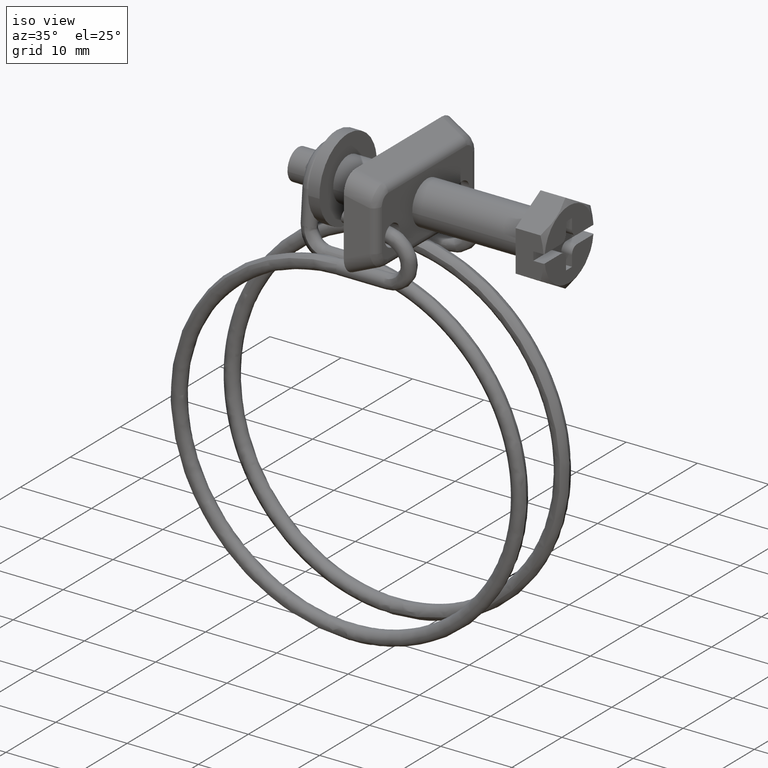
[diagram: clean part render]
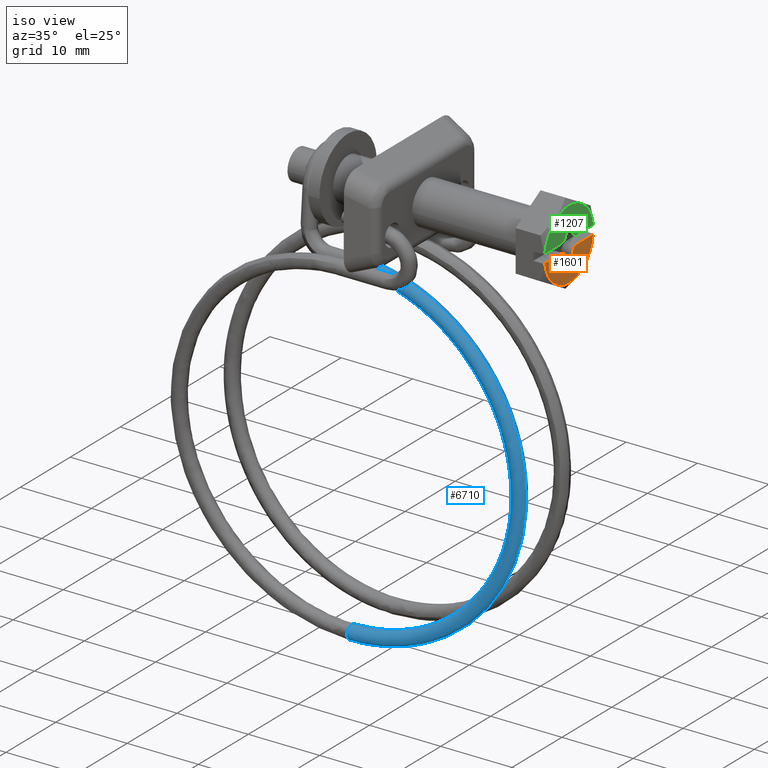
[diagram: same view with three faces highlighted in distinct colors, each labeled with its STEP entity id]
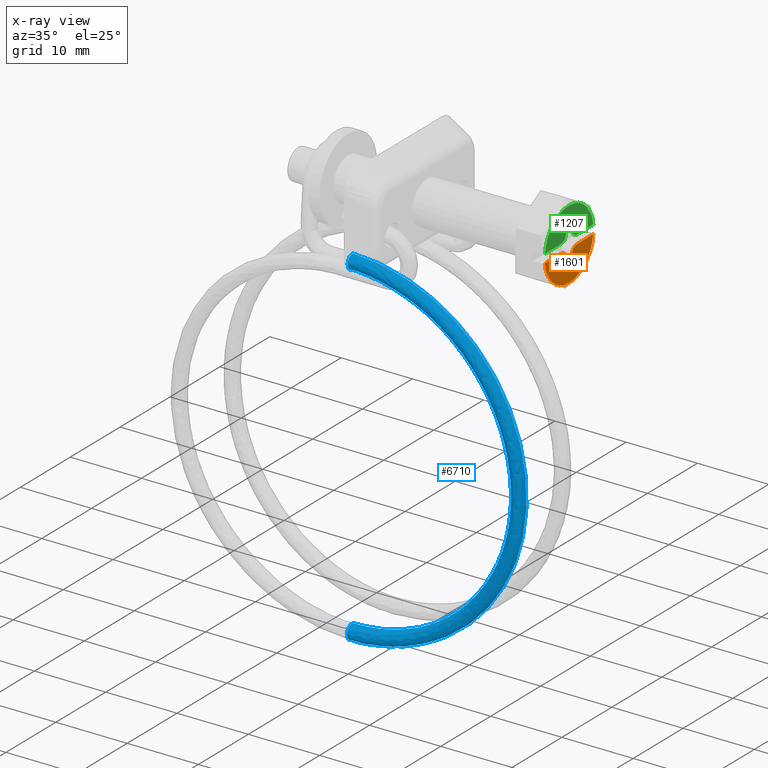
[diagram: x-ray of the same camera — body ghosted, the three highlighted faces saturated]
A machine part, iso view with three faces highlighted in distinct colors.
The next image is the same camera in x-ray (body ghosted, the three faces saturated) — at least one of them is partly hidden behind the body in this view.
Their STEP definitions:

[orange] entity #1601 — the highlighted face is a freeform B-spline surface patch.
#887=CARTESIAN_POINT('',(4.0,1.599999000000025,-0.600000000000000));
#888=VERTEX_POINT('',#887);
#894=CARTESIAN_POINT('',(4.0,4.863124347857450,-0.600000000000108));
#895=VERTEX_POINT('',#894);
#896=CARTESIAN_POINT('',(4.0,1.599999000000025,-0.600000000000000));
#897=CARTESIAN_POINT('',(4.0,4.863124347857450,-0.600000000000108));
#898=QUASI_UNIFORM_CURVE('',1,(#896,#897),.UNSPECIFIED.,.F.,.U.);
#899=EDGE_CURVE('',#888,#895,#898,.T.);
#925=CARTESIAN_POINT('',(4.0,0.599999000000025,-1.600000000000000));
#926=VERTEX_POINT('',#925);
#927=CARTESIAN_POINT('',(4.0,1.599999000000025,-0.600000000000000));
#928=CARTESIAN_POINT('',(4.000000000000000,0.599999000000025,-0.600000000000000));
#929=CARTESIAN_POINT('',(4.0,0.599999000000025,-1.600000000000000));
#937=(BOUNDED_CURVE()B_SPLINE_CURVE(2,(#927,#928,#929),.UNSPECIFIED.,.F.,.U.)CURVE()GEOMETRIC_REPRESENTATION_ITEM()QUASI_UNIFORM_CURVE()RATIONAL_B_SPLINE_CURVE((1.0,0.707106781186548,1.0))REPRESENTATION_ITEM(''));
#938=EDGE_CURVE('',#888,#926,#937,.T.);
#955=CARTESIAN_POINT('',(4.0,0.599999000000025,-3.099999000000110));
#956=VERTEX_POINT('',#955);
#957=CARTESIAN_POINT('',(4.0,0.599999000000025,-3.099999000000110));
#958=CARTESIAN_POINT('',(4.0,0.599999000000025,-1.600000000000000));
#959=QUASI_UNIFORM_CURVE('',1,(#957,#958),.UNSPECIFIED.,.F.,.U.);
#960=EDGE_CURVE('',#956,#926,#959,.T.);
#977=CARTESIAN_POINT('',(4.0,-0.599998000000198,-3.099999000000110));
#978=VERTEX_POINT('',#977);
#979=CARTESIAN_POINT('',(4.0,-0.599998000000198,-3.099999000000110));
#980=CARTESIAN_POINT('',(4.0,0.599999000000025,-3.099999000000110));
#981=QUASI_UNIFORM_CURVE('',1,(#979,#980),.UNSPECIFIED.,.F.,.U.);
#982=EDGE_CURVE('',#978,#956,#981,.T.);
#999=CARTESIAN_POINT('',(4.0,-0.599998000000085,-1.600000000000000));
#1000=VERTEX_POINT('',#999);
#1001=CARTESIAN_POINT('',(4.0,-0.599998000000085,-1.600000000000000));
#1002=CARTESIAN_POINT('',(4.0,-0.599998000000198,-3.099999000000110));
#1003=QUASI_UNIFORM_CURVE('',1,(#1001,#1002),.UNSPECIFIED.,.F.,.U.);
#1004=EDGE_CURVE('',#1000,#978,#1003,.T.);
#1030=CARTESIAN_POINT('',(4.0,-1.599998000000085,-0.600000000000108));
#1031=VERTEX_POINT('',#1030);
#1032=CARTESIAN_POINT('',(4.0,-0.599998000000085,-1.600000000000000));
#1033=CARTESIAN_POINT('',(4.000000000000000,-0.599998000000085,-0.600000000000000));
#1034=CARTESIAN_POINT('',(4.0,-1.599998000000085,-0.600000000000108));
#1042=(BOUNDED_CURVE()B_SPLINE_CURVE(2,(#1032,#1033,#1034),.UNSPECIFIED.,.F.,.U.)CURVE()GEOMETRIC_REPRESENTATION_ITEM()QUASI_UNIFORM_CURVE()RATIONAL_B_SPLINE_CURVE((1.0,0.707106781186548,1.0))REPRESENTATION_ITEM(''));
#1043=EDGE_CURVE('',#1000,#1031,#1042,.T.);
#1067=CARTESIAN_POINT('',(4.0,-4.863124347857450,-0.600000000000108));
#1068=VERTEX_POINT('',#1067);
#1076=CARTESIAN_POINT('',(4.0,-4.863124347857450,-0.600000000000108));
#1077=CARTESIAN_POINT('',(4.0,-1.599998000000085,-0.600000000000108));
#1078=QUASI_UNIFORM_CURVE('',1,(#1076,#1077),.UNSPECIFIED.,.F.,.U.);
#1079=EDGE_CURVE('',#1068,#1031,#1078,.T.);
#1226=CARTESIAN_POINT('',(4.0,4.863124347857444,-0.600000000000105));
#1227=CARTESIAN_POINT('',(4.000000000000001,4.332601479348219,-4.899997798236649));
#1228=CARTESIAN_POINT('',(4.0,0.0,-4.899997798236650));
#1229=CARTESIAN_POINT('',(4.000000000000001,-4.332601479348218,-4.899997798236649));
#1230=CARTESIAN_POINT('',(4.0,-4.863124347857443,-0.600000000000108));
#1238=(BOUNDED_CURVE()B_SPLINE_CURVE(2,(#1226,#1227,#1228,#1229,#1230),.UNSPECIFIED.,.F.,.U.)B_SPLINE_CURVE_WITH_KNOTS((3,2,3),(0.0,0.500000000000000,1.0),.UNSPECIFIED.)CURVE()GEOMETRIC_REPRESENTATION_ITEM()RATIONAL_B_SPLINE_CURVE((1.0,0.749149195625625,1.0,0.749149195625625,1.0))REPRESENTATION_ITEM(''));
#1239=EDGE_CURVE('',#895,#1068,#1238,.T.);
#1586=CARTESIAN_POINT('',(4.0,-5.348950542660116,-5.114782599193691));
#1587=CARTESIAN_POINT('',(4.0,5.348950716578997,-5.114782599193691));
#1588=CARTESIAN_POINT('',(4.0,-5.348950542660116,-0.385215006818037));
#1589=CARTESIAN_POINT('',(4.0,5.348950716578997,-0.385215006818037));
#1590=B_SPLINE_SURFACE_WITH_KNOTS('',1,1,((#1586,#1588),(#1587,#1589)),.UNSPECIFIED.,.F.,.F.,.U.,(2,2),(2,2),(0.0,10.697901259239110),(0.0,4.729567592375655),.UNSPECIFIED.);
#1591=ORIENTED_EDGE('',*,*,#1079,.F.);
#1592=ORIENTED_EDGE('',*,*,#1239,.F.);
#1593=ORIENTED_EDGE('',*,*,#899,.F.);
#1594=ORIENTED_EDGE('',*,*,#938,.T.);
#1595=ORIENTED_EDGE('',*,*,#960,.F.);
#1596=ORIENTED_EDGE('',*,*,#982,.F.);
#1597=ORIENTED_EDGE('',*,*,#1004,.F.);
#1598=ORIENTED_EDGE('',*,*,#1043,.T.);
#1599=EDGE_LOOP('',(#1591,#1592,#1593,#1594,#1595,#1596,#1597,#1598));
#1600=FACE_OUTER_BOUND('',#1599,.T.);
#1601=ADVANCED_FACE('',(#1600),#1590,.T.);

[blue] entity #6710 — the highlighted face is a freeform B-spline surface patch.
#4745=CARTESIAN_POINT('',(-23.351536848102011,-4.979166066086466,-7.116216842421510));
#4746=VERTEX_POINT('',#4745);
#4747=CARTESIAN_POINT('',(-23.357103187881268,-5.071612558950177,-8.486261127882662));
#4748=VERTEX_POINT('',#4747);
#4749=CARTESIAN_POINT('',(-23.351536848102011,-4.979166066086466,-7.116216842421510));
#4750=CARTESIAN_POINT('',(-23.351572497110212,-4.988655453504654,-7.124991164471927));
#4751=CARTESIAN_POINT('',(-23.351608898400642,-4.997973818481973,-7.133950645386448));
#4752=CARTESIAN_POINT('',(-23.352022092150719,-5.099673901040332,-7.235650367018437));
#4753=CARTESIAN_POINT('',(-23.352472780463721,-5.173794299134039,-7.346578554135867));
#4754=CARTESIAN_POINT('',(-23.353455479036150,-5.273982415017651,-7.588450577191061));
#4755=CARTESIAN_POINT('',(-23.353987102645661,-5.300010713062182,-7.719299246816164));
#4756=CARTESIAN_POINT('',(-23.355050768792999,-5.300012637429054,-7.981099552010465));
#4757=CARTESIAN_POINT('',(-23.355582392823639,-5.273986262994240,-8.111948180338962));
#4758=CARTESIAN_POINT('',(-23.356444986427199,-5.186046358935132,-8.324258225899477));
#4759=CARTESIAN_POINT('',(-23.356793018110629,-5.134482784034537,-8.409919171711474));
#4760=CARTESIAN_POINT('',(-23.357103187881268,-5.071612558950177,-8.486261127882662));
#4761=B_SPLINE_CURVE_WITH_KNOTS('',3,(#4749,#4750,#4751,#4752,#4753,#4754,#4755,#4756,#4757,#4758,#4759,#4760),.UNSPECIFIED.,.F.,.U.,(4,2,2,2,2,4),(0.118828856065393,0.125000000000000,0.187500000000000,0.250000000000000,0.312500000000000,0.359722376327461),.UNSPECIFIED.);
#4762=EDGE_CURVE('',#4746,#4748,#4761,.T.);
#4837=CARTESIAN_POINT('',(-23.350455879858750,-4.300001999999997,-6.850203225974386));
#4838=VERTEX_POINT('',#4837);
#4839=CARTESIAN_POINT('',(-23.350455879858750,-4.300001999999997,-6.850203225974386));
#4840=CARTESIAN_POINT('',(-23.350455900103789,-4.430902382518949,-6.850202481149863));
#4841=CARTESIAN_POINT('',(-23.350561671591070,-4.561751314957704,-6.876228787109447));
#4842=CARTESIAN_POINT('',(-23.350948676168692,-4.791682846024904,-6.971466656679279));
#4843=CARTESIAN_POINT('',(-23.351211423177269,-4.892549018098051,-7.036128425987497));
#4844=CARTESIAN_POINT('',(-23.351536848102011,-4.979166066086466,-7.116216842421510));
#4845=B_SPLINE_CURVE_WITH_KNOTS('',3,(#4839,#4840,#4841,#4842,#4843,#4844),.UNSPECIFIED.,.F.,.U.,(4,2,4),(0.0,0.062500000000000,0.118828856065393),.UNSPECIFIED.);
#4846=EDGE_CURVE('',#4838,#4746,#4845,.T.);
#4848=CARTESIAN_POINT('',(-23.350463088142170,-4.287435667147010,-6.850282625755185));
#4849=VERTEX_POINT('',#4848);
#4850=CARTESIAN_POINT('',(-23.350463088142170,-4.287435667147010,-6.850282625755185));
#4851=CARTESIAN_POINT('',(-23.350460577314159,-4.291624176579051,-6.850229548395836));
#4852=CARTESIAN_POINT('',(-23.350458174406882,-4.295813061917953,-6.850203060379601));
#4853=CARTESIAN_POINT('',(-23.350455879858750,-4.300001999999997,-6.850203225974386));
#4854=B_SPLINE_CURVE_WITH_KNOTS('',3,(#4850,#4851,#4852,#4853),.UNSPECIFIED.,.F.,.U.,(4,4),(0.997999930342307,1.0),.UNSPECIFIED.);
#4855=EDGE_CURVE('',#4849,#4838,#4854,.T.);
#4857=CARTESIAN_POINT('',(-23.354802229962161,-3.302446797782970,-7.919926910837956));
#4858=VERTEX_POINT('',#4857);
#4874=CARTESIAN_POINT('',(-23.358581930482529,-4.300002000000001,-8.850186717731575));
#4875=VERTEX_POINT('',#4874);
#4876=CARTESIAN_POINT('',(-23.358581930482529,-4.300002000000001,-8.850186717731575));
#4877=CARTESIAN_POINT('',(-23.358581930680039,-4.169101571152241,-8.850186769456224));
#4878=CARTESIAN_POINT('',(-23.358476181240611,-4.038252509756258,-8.824159722252535));
#4879=CARTESIAN_POINT('',(-23.358069122321201,-3.796379531168991,-8.723974393381374));
#4880=CARTESIAN_POINT('',(-23.357767973001550,-3.685450780666323,-8.649855530362698));
#4881=CARTESIAN_POINT('',(-23.357015825798211,-3.500328649593215,-8.464737077309438));
#4882=CARTESIAN_POINT('',(-23.356565123852342,-3.426208106676265,-8.353810323481199));
#4883=CARTESIAN_POINT('',(-23.355669723077462,-3.334922901102388,-8.133434301500136));
#4884=CARTESIAN_POINT('',(-23.355238454562841,-3.310003625847646,-8.027290502285482));
#4885=CARTESIAN_POINT('',(-23.354802229962161,-3.302446797782970,-7.919926910837956));
#4886=B_SPLINE_CURVE_WITH_KNOTS('',3,(#4876,#4877,#4878,#4879,#4880,#4881,#4882,#4883,#4884,#4885),.UNSPECIFIED.,.F.,.U.,(4,2,2,2,4),(0.500000000000000,0.562500000000000,0.625000000000000,0.687500000000000,0.738892255999504),.UNSPECIFIED.);
#4887=EDGE_CURVE('',#4875,#4858,#4886,.T.);
#4889=CARTESIAN_POINT('',(-23.357103187881268,-5.071612558950177,-8.486261127882662));
#4890=CARTESIAN_POINT('',(-23.357203539869911,-5.051271809251484,-8.510958994387538));
#4891=CARTESIAN_POINT('',(-23.357299928816609,-5.029747606439916,-8.534681459776014));
#4892=CARTESIAN_POINT('',(-23.357767938813929,-4.914559422074790,-8.649864027551237));
#4893=CARTESIAN_POINT('',(-23.358069095190711,-4.803629480464985,-8.723981148226359));
#4894=CARTESIAN_POINT('',(-23.358476168063738,-4.561754020433499,-8.824163015547871));
#4895=CARTESIAN_POINT('',(-23.358581924394191,-4.430903669676773,-8.850188344907426));
#4896=CARTESIAN_POINT('',(-23.358581930482529,-4.300002000000001,-8.850186717731575));
#4897=B_SPLINE_CURVE_WITH_KNOTS('',3,(#4889,#4890,#4891,#4892,#4893,#4894,#4895,#4896),.UNSPECIFIED.,.F.,.U.,(4,2,2,4),(0.359722376327460,0.375000000000000,0.437500000000000,0.500000000000000),.UNSPECIFIED.);
#4898=EDGE_CURVE('',#4748,#4875,#4897,.T.);
#6574=CARTESIAN_POINT('',(-26.660581800652629,-3.300955259810670,-8.119356097575894));
#6575=CARTESIAN_POINT('',(0.342145024745647,-3.300955259810670,-4.387455253765404));
#6576=CARTESIAN_POINT('',(-0.000397556439515,-3.300955259810670,-31.644692907188613));
#6577=CARTESIAN_POINT('',(-0.336129615413925,-3.300955259810668,-58.359994951321930));
#6578=CARTESIAN_POINT('',(-26.782425363249491,-3.300955259810670,-54.563480689171293));
#6579=CARTESIAN_POINT('',(-26.659137386271645,-3.301692783983979,-8.129807373905221));
#6580=CARTESIAN_POINT('',(0.331441134123347,-3.301692783983977,-4.399585481631209));
#6581=CARTESIAN_POINT('',(-0.010947339968122,-3.301692783983978,-31.644560327720111));
#6582=CARTESIAN_POINT('',(-0.346528355846842,-3.301692783983977,-58.347843376898389));
#6583=CARTESIAN_POINT('',(-26.780926132450499,-3.301692783983978,-54.553037135330413));
#6584=CARTESIAN_POINT('',(-26.528710791672498,-3.368289162160303,-9.073528510164410));
#6585=CARTESIAN_POINT('',(-0.635090369031504,-3.368289162160303,-5.494911264232351));
#6586=CARTESIAN_POINT('',(-0.963563401890454,-3.368289162160303,-31.632588771068686));
#6587=CARTESIAN_POINT('',(-1.285505647020240,-3.368289162160303,-57.250590059603041));
#6588=CARTESIAN_POINT('',(-26.645549768018331,-3.368289162160302,-53.610013318264151));
#6589=CARTESIAN_POINT('',(-26.530335393600495,-4.312568039883353,-9.061773459883705));
#6590=CARTESIAN_POINT('',(-0.623051191375161,-4.312568039883352,-5.481267816869004));
#6591=CARTESIAN_POINT('',(-0.951697555851979,-4.312568039883352,-31.632737889537019));
#6592=CARTESIAN_POINT('',(-1.273809686374559,-4.312568039883353,-57.264257516460695));
#6593=CARTESIAN_POINT('',(-26.647236024593052,-4.312568039883352,-53.621759682692790));
#6594=CARTESIAN_POINT('',(-26.532055726115154,-5.312489084087170,-9.049325736622441));
#6595=CARTESIAN_POINT('',(-0.610302598372089,-5.312489084087170,-5.466820421659873));
#6596=CARTESIAN_POINT('',(-0.939132508130310,-5.312489084087169,-31.632895794895369));
#6597=CARTESIAN_POINT('',(-1.261424534638453,-5.312489084087170,-57.278730335937141));
#6598=CARTESIAN_POINT('',(-26.649021644789336,-5.312489084087170,-53.634198208283266));
#6599=CARTESIAN_POINT('',(-26.668948231662284,-5.299923044203815,-8.058819534437577));
#6600=CARTESIAN_POINT('',(0.404144796837045,-5.299923044203815,-4.317193758236867));
#6601=CARTESIAN_POINT('',(0.060709586511340,-5.299923044203815,-31.645460842617041));
#6602=CARTESIAN_POINT('',(-0.275897354114913,-5.299923044203815,-58.430380091771887));
#6603=CARTESIAN_POINT('',(-26.791109305484124,-5.299923044203815,-54.623972521609254));
#6604=CARTESIAN_POINT('',(-26.805840737209405,-5.287357004320463,-7.068313332252714));
#6605=CARTESIAN_POINT('',(1.418592192046172,-5.287357004320463,-3.167567094813859));
#6606=CARTESIAN_POINT('',(1.060551681152990,-5.287357004320464,-31.658025890338706));
#6607=CARTESIAN_POINT('',(0.709629826408630,-5.287357004320462,-59.582029847606634));
#6608=CARTESIAN_POINT('',(-26.933196966178912,-5.287357004320464,-55.613746834935235));
#6609=CARTESIAN_POINT('',(-26.804102446087541,-4.276997751742512,-7.080890997702852));
#6610=CARTESIAN_POINT('',(1.405710516065187,-4.276997751742512,-3.182165306852511));
#6611=CARTESIAN_POINT('',(1.047855466488582,-4.276997751742514,-31.657866336601185));
#6612=CARTESIAN_POINT('',(0.697115385669842,-4.276997751742512,-59.567405945895899));
#6613=CARTESIAN_POINT('',(-26.931392705835197,-4.276997751742512,-55.601178463170683));
#6614=CARTESIAN_POINT('',(-26.804084642117321,-4.266649424118870,-7.081019820992670));
#6615=CARTESIAN_POINT('',(1.405578579030858,-4.266649424118873,-3.182314825036771));
#6616=CARTESIAN_POINT('',(1.047725428990937,-4.266649424118871,-31.657864702415765));
#6617=CARTESIAN_POINT('',(0.696987209941792,-4.266649424118873,-59.567256164592223));
#6618=CARTESIAN_POINT('',(-26.931374226193320,-4.266649424118873,-55.601049735068905));
#6626=(BOUNDED_SURFACE()B_SPLINE_SURFACE(2,2,((#6574,#6579,#6584,#6589,#6594,#6599,#6604,#6609,#6614),(#6575,#6580,#6585,#6590,#6595,#6600,#6605,#6610,#6615),(#6576,#6581,#6586,#6591,#6596,#6601,#6606,#6611,#6616),(#6577,#6582,#6587,#6592,#6597,#6602,#6607,#6612,#6617),(#6578,#6583,#6588,#6593,#6598,#6603,#6608,#6613,#6618)),.UNSPECIFIED.,.F.,.F.,.U.)B_SPLINE_SURFACE_WITH_KNOTS((3,2,3),(3,1,2,2,1,3),(0.0,44.965035841072932,89.344667818100405),(0.0,0.024521814232393,1.615101893745090,3.271956143237483,4.928810392729876,4.953376792436365),.UNSPECIFIED.)GEOMETRIC_REPRESENTATION_ITEM()RATIONAL_B_SPLINE_SURFACE(((0.979696078162446,0.975731398398996,0.714602195911957,0.994128851046294,0.702955251948026,0.994128851046294,0.702955251948026,0.998446120970077,1.002763390893860),(0.640815459210605,0.638222177334859,0.467418564321635,0.650255880775416,0.459800342802728,0.650255880775416,0.459800342802728,0.653079790527034,0.655903700278652),(0.985481989715259,0.981493895255193,0.718822509939086,1.0,0.707106781186548,1.0,0.707106781186548,1.004342766955449,1.008685533910899),(0.645302703910636,0.642691262843839,0.470691615003078,0.654809231061734,0.463020047667301,0.654809231061734,0.463020047667301,0.657652914952512,0.660496598843290),(0.970988102368189,0.967058662447157,0.708250492803993,0.985292590328051,0.696707072073824,0.985292590328051,0.696707072073824,0.989571486430777,0.993850382533502)))REPRESENTATION_ITEM('')SURFACE());
#6627=ORIENTED_EDGE('',*,*,#4887,.T.);
#6628=CARTESIAN_POINT('',(-23.449999999929819,-3.302485887032724,-54.780271342080880));
#6629=VERTEX_POINT('',#6628);
#6630=CARTESIAN_POINT('',(-23.354802229962157,-3.302446797782970,-7.919926910837956));
#6631=CARTESIAN_POINT('',(0.275356767439989,-3.302446837827358,-8.015937642070787));
#6632=CARTESIAN_POINT('',(-0.021583205459904,-3.302466548304202,-31.644428117575227));
#6633=CARTESIAN_POINT('',(-0.312332065016226,-3.302485847823251,-54.780271337667571));
#6634=CARTESIAN_POINT('',(-23.449999999929823,-3.302485887032724,-54.780271342080887));
#6642=(BOUNDED_CURVE()B_SPLINE_CURVE(2,(#6630,#6631,#6632,#6633,#6634),.UNSPECIFIED.,.F.,.U.)B_SPLINE_CURVE_WITH_KNOTS((3,2,3),(-3.804256949641648,-2.0,-0.221563029389117),.UNSPECIFIED.)CURVE()GEOMETRIC_REPRESENTATION_ITEM()RATIONAL_B_SPLINE_CURVE((0.916624329588821,0.666478302782561,0.977505800795127,0.670929289366412,0.909579780183434))REPRESENTATION_ITEM(''));
#6643=EDGE_CURVE('',#4858,#6629,#6642,.T.);
#6644=ORIENTED_EDGE('',*,*,#6643,.T.);
#6645=CARTESIAN_POINT('',(-23.450000000000490,-4.300002000000002,-53.850000999999899));
#6646=VERTEX_POINT('',#6645);
#6647=CARTESIAN_POINT('',(-23.450000000000490,-4.300002000000002,-53.850000999999899));
#6648=CARTESIAN_POINT('',(-23.449999999990570,-4.038195655369269,-53.850000495565972));
#6649=CARTESIAN_POINT('',(-23.449999999976900,-3.777998799462701,-53.957772896960172));
#6650=CARTESIAN_POINT('',(-23.449999999950990,-3.424196145417322,-54.311556064548753));
#6651=CARTESIAN_POINT('',(-23.449999999938871,-3.319730377697571,-54.542534340321858));
#6652=CARTESIAN_POINT('',(-23.449999999929819,-3.302485887032724,-54.780271342080880));
#6653=B_SPLINE_CURVE_WITH_KNOTS('',3,(#6647,#6648,#6649,#6650,#6651,#6652),.UNSPECIFIED.,.F.,.U.,(4,2,4),(0.500000000000000,0.625000000000000,0.738888458193220),.UNSPECIFIED.);
#6654=EDGE_CURVE('',#6646,#6629,#6653,.T.);
#6655=ORIENTED_EDGE('',*,*,#6654,.F.);
#6656=CARTESIAN_POINT('',(-23.450000000000468,-5.028950104824222,-55.534537615099502));
#6657=VERTEX_POINT('',#6656);
#6658=CARTESIAN_POINT('',(-23.450000000000468,-5.028950104824222,-55.534537615099502));
#6659=CARTESIAN_POINT('',(-23.450000000000529,-5.200678408403421,-55.351169861156613));
#6660=CARTESIAN_POINT('',(-23.450000000000529,-5.300002000000000,-55.101328293312498));
#6661=CARTESIAN_POINT('',(-23.450000000000511,-5.300002000000001,-54.588201612200749));
#6662=CARTESIAN_POINT('',(-23.450000000000511,-5.192228903609815,-54.328014341236610));
#6663=CARTESIAN_POINT('',(-23.450000000000500,-4.821988658763284,-53.957774096390096));
#6664=CARTESIAN_POINT('',(-23.450000000000490,-4.561801387799152,-53.850000999999907));
#6665=CARTESIAN_POINT('',(-23.450000000000490,-4.300002000000002,-53.850000999999899));
#6666=B_SPLINE_CURVE_WITH_KNOTS('',3,(#6658,#6659,#6660,#6661,#6662,#6663,#6664,#6665),.UNSPECIFIED.,.F.,.U.,(4,2,2,4),(0.130000056806173,0.250000000000000,0.375000000000000,0.500000000000000),.UNSPECIFIED.);
#6667=EDGE_CURVE('',#6657,#6646,#6666,.T.);
#6668=ORIENTED_EDGE('',*,*,#6667,.F.);
#6669=CARTESIAN_POINT('',(-23.450000000000468,-4.300002000000005,-55.850000999999907));
#6670=VERTEX_POINT('',#6669);
#6671=CARTESIAN_POINT('',(-23.450000000000539,-4.300001999999999,-55.850000999999907));
#6672=CARTESIAN_POINT('',(-23.450000000000539,-4.561801387799146,-55.850000999999907));
#6673=CARTESIAN_POINT('',(-23.450000000000539,-4.821988658763279,-55.742227903609702));
#6674=CARTESIAN_POINT('',(-23.450000000000529,-5.014513670211201,-55.549702892161790));
#6675=CARTESIAN_POINT('',(-23.450000000000529,-5.021794801182164,-55.542177892970322));
#6676=CARTESIAN_POINT('',(-23.450000000000468,-5.028950104824222,-55.534537615099502));
#6677=B_SPLINE_CURVE_WITH_KNOTS('',3,(#6671,#6672,#6673,#6674,#6675,#6676),.UNSPECIFIED.,.F.,.U.,(4,2,4),(0.0,0.125000000000000,0.130000056806173),.UNSPECIFIED.);
#6678=EDGE_CURVE('',#6670,#6657,#6677,.T.);
#6679=ORIENTED_EDGE('',*,*,#6678,.F.);
#6680=CARTESIAN_POINT('',(-23.450016704788052,-4.287434460039799,-55.849920171865463));
#6681=VERTEX_POINT('',#6680);
#6682=CARTESIAN_POINT('',(-23.450016704788052,-4.287434460039799,-55.849920171865463));
#6683=CARTESIAN_POINT('',(-23.450011137100439,-4.291623026437637,-55.849974633206557));
#6684=CARTESIAN_POINT('',(-23.450005568704160,-4.295812306779462,-55.850001617471577));
#6685=CARTESIAN_POINT('',(-23.450000000000468,-4.300002000000005,-55.850000999999907));
#6686=B_SPLINE_CURVE_WITH_KNOTS('',3,(#6682,#6683,#6684,#6685),.UNSPECIFIED.,.F.,.U.,(4,4),(0.997999572718574,1.0),.UNSPECIFIED.);
#6687=EDGE_CURVE('',#6681,#6670,#6686,.T.);
#6688=ORIENTED_EDGE('',*,*,#6687,.F.);
#6689=CARTESIAN_POINT('',(-23.350463088142167,-4.287435667147010,-6.850282625755185));
#6690=CARTESIAN_POINT('',(1.358482793455375,-4.287435665910700,-6.950669580082859));
#6691=CARTESIAN_POINT('',(1.047986632482016,-4.287435057235282,-31.657867272768598));
#6692=CARTESIAN_POINT('',(0.743964105629792,-4.287434461250333,-55.849936670407061));
#6693=CARTESIAN_POINT('',(-23.450016704788059,-4.287434460039799,-55.849920171865463));
#6701=(BOUNDED_CURVE()B_SPLINE_CURVE(2,(#6689,#6690,#6691,#6692,#6693),.UNSPECIFIED.,.F.,.U.)B_SPLINE_CURVE_WITH_KNOTS((3,2,3),(-3.804257295398728,-2.0,-0.221562197034377),.UNSPECIFIED.)CURVE()GEOMETRIC_REPRESENTATION_ITEM()RATIONAL_B_SPLINE_CURVE((0.937717632689477,0.681815128500485,1.0,0.686368454626954,0.930511105747861))REPRESENTATION_ITEM(''));
#6702=EDGE_CURVE('',#4849,#6681,#6701,.T.);
#6703=ORIENTED_EDGE('',*,*,#6702,.F.);
#6704=ORIENTED_EDGE('',*,*,#4855,.T.);
#6705=ORIENTED_EDGE('',*,*,#4846,.T.);
#6706=ORIENTED_EDGE('',*,*,#4762,.T.);
#6707=ORIENTED_EDGE('',*,*,#4898,.T.);
#6708=EDGE_LOOP('',(#6627,#6644,#6655,#6668,#6679,#6688,#6703,#6704,#6705,#6706,#6707));
#6709=FACE_OUTER_BOUND('',#6708,.T.);
#6710=ADVANCED_FACE('',(#6709),#6626,.T.);

[green] entity #1207 — the highlighted face is a freeform B-spline surface patch.
#759=CARTESIAN_POINT('',(4.0,0.599999000000025,3.099999000000110));
#760=VERTEX_POINT('',#759);
#761=CARTESIAN_POINT('',(4.0,-0.599998000000198,3.099999000000110));
#762=VERTEX_POINT('',#761);
#763=CARTESIAN_POINT('',(4.0,0.599999000000025,3.099999000000110));
#764=CARTESIAN_POINT('',(4.0,-0.599998000000198,3.099999000000110));
#765=QUASI_UNIFORM_CURVE('',1,(#763,#764),.UNSPECIFIED.,.F.,.U.);
#766=EDGE_CURVE('',#760,#762,#765,.T.);
#787=CARTESIAN_POINT('',(4.0,0.599999000000025,1.600000000000000));
#788=VERTEX_POINT('',#787);
#789=CARTESIAN_POINT('',(4.0,0.599999000000025,1.600000000000000));
#790=CARTESIAN_POINT('',(4.0,0.599999000000025,3.099999000000110));
#791=QUASI_UNIFORM_CURVE('',1,(#789,#790),.UNSPECIFIED.,.F.,.U.);
#792=EDGE_CURVE('',#788,#760,#791,.T.);
#818=CARTESIAN_POINT('',(4.0,1.599999000000025,0.600000000000108));
#819=VERTEX_POINT('',#818);
#820=CARTESIAN_POINT('',(4.0,0.599999000000025,1.600000000000000));
#821=CARTESIAN_POINT('',(4.000000000000000,0.599999000000025,0.600000000000000));
#822=CARTESIAN_POINT('',(4.0,1.599999000000025,0.600000000000108));
#830=(BOUNDED_CURVE()B_SPLINE_CURVE(2,(#820,#821,#822),.UNSPECIFIED.,.F.,.U.)CURVE()GEOMETRIC_REPRESENTATION_ITEM()QUASI_UNIFORM_CURVE()RATIONAL_B_SPLINE_CURVE((1.0,0.707106781186548,1.0))REPRESENTATION_ITEM(''));
#831=EDGE_CURVE('',#788,#819,#830,.T.);
#855=CARTESIAN_POINT('',(4.0,4.863124347857450,0.600000000000108));
#856=VERTEX_POINT('',#855);
#864=CARTESIAN_POINT('',(4.0,4.863124347857450,0.600000000000108));
#865=CARTESIAN_POINT('',(4.0,1.599999000000025,0.600000000000108));
#866=QUASI_UNIFORM_CURVE('',1,(#864,#865),.UNSPECIFIED.,.F.,.U.);
#867=EDGE_CURVE('',#856,#819,#866,.T.);
#1099=CARTESIAN_POINT('',(4.0,-1.599998000000085,0.600000000000000));
#1100=VERTEX_POINT('',#1099);
#1106=CARTESIAN_POINT('',(4.0,-4.863124347857450,0.600000000000108));
#1107=VERTEX_POINT('',#1106);
#1108=CARTESIAN_POINT('',(4.0,-1.599998000000085,0.600000000000000));
#1109=CARTESIAN_POINT('',(4.0,-4.863124347857450,0.600000000000108));
#1110=QUASI_UNIFORM_CURVE('',1,(#1108,#1109),.UNSPECIFIED.,.F.,.U.);
#1111=EDGE_CURVE('',#1100,#1107,#1110,.T.);
#1137=CARTESIAN_POINT('',(4.0,-0.599998000000085,1.600000000000000));
#1138=VERTEX_POINT('',#1137);
#1139=CARTESIAN_POINT('',(4.0,-1.599998000000085,0.600000000000000));
#1140=CARTESIAN_POINT('',(4.000000000000000,-0.599998000000085,0.600000000000000));
#1141=CARTESIAN_POINT('',(4.0,-0.599998000000085,1.600000000000000));
#1149=(BOUNDED_CURVE()B_SPLINE_CURVE(2,(#1139,#1140,#1141),.UNSPECIFIED.,.F.,.U.)CURVE()GEOMETRIC_REPRESENTATION_ITEM()QUASI_UNIFORM_CURVE()RATIONAL_B_SPLINE_CURVE((1.0,0.707106781186548,1.0))REPRESENTATION_ITEM(''));
#1150=EDGE_CURVE('',#1100,#1138,#1149,.T.);
#1167=CARTESIAN_POINT('',(4.0,-0.599998000000198,3.099999000000110));
#1168=CARTESIAN_POINT('',(4.0,-0.599998000000085,1.600000000000000));
#1169=QUASI_UNIFORM_CURVE('',1,(#1167,#1168),.UNSPECIFIED.,.F.,.U.);
#1170=EDGE_CURVE('',#762,#1138,#1169,.T.);
#1178=CARTESIAN_POINT('',(4.0,-5.348950542660116,0.385215133674924));
#1179=CARTESIAN_POINT('',(4.0,5.348950716578997,0.385215133674924));
#1180=CARTESIAN_POINT('',(4.0,-5.348950542660116,5.114782472336802));
#1181=CARTESIAN_POINT('',(4.0,5.348950716578997,5.114782472336802));
#1182=B_SPLINE_SURFACE_WITH_KNOTS('',1,1,((#1178,#1180),(#1179,#1181)),.UNSPECIFIED.,.F.,.F.,.U.,(2,2),(2,2),(0.0,10.697901259239110),(0.0,4.729567338661878),.UNSPECIFIED.);
#1183=ORIENTED_EDGE('',*,*,#1111,.F.);
#1184=ORIENTED_EDGE('',*,*,#1150,.T.);
#1185=ORIENTED_EDGE('',*,*,#1170,.F.);
#1186=ORIENTED_EDGE('',*,*,#766,.F.);
#1187=ORIENTED_EDGE('',*,*,#792,.F.);
#1188=ORIENTED_EDGE('',*,*,#831,.T.);
#1189=ORIENTED_EDGE('',*,*,#867,.F.);
#1190=CARTESIAN_POINT('',(4.0,-4.863124347857444,0.600000000000106));
#1191=CARTESIAN_POINT('',(4.000000000000001,-4.332601479348219,4.899997798236649));
#1192=CARTESIAN_POINT('',(4.0,0.0,4.899997798236650));
#1193=CARTESIAN_POINT('',(4.000000000000001,4.332601479348219,4.899997798236649));
#1194=CARTESIAN_POINT('',(4.0,4.863124347857444,0.600000000000107));
#1202=(BOUNDED_CURVE()B_SPLINE_CURVE(2,(#1190,#1191,#1192,#1193,#1194),.UNSPECIFIED.,.F.,.U.)B_SPLINE_CURVE_WITH_KNOTS((3,2,3),(0.0,0.500000000000000,1.0),.UNSPECIFIED.)CURVE()GEOMETRIC_REPRESENTATION_ITEM()RATIONAL_B_SPLINE_CURVE((1.0,0.749149195625625,1.0,0.749149195625625,1.0))REPRESENTATION_ITEM(''));
#1203=EDGE_CURVE('',#1107,#856,#1202,.T.);
#1204=ORIENTED_EDGE('',*,*,#1203,.F.);
#1205=EDGE_LOOP('',(#1183,#1184,#1185,#1186,#1187,#1188,#1189,#1204));
#1206=FACE_OUTER_BOUND('',#1205,.T.);
#1207=ADVANCED_FACE('',(#1206),#1182,.T.);